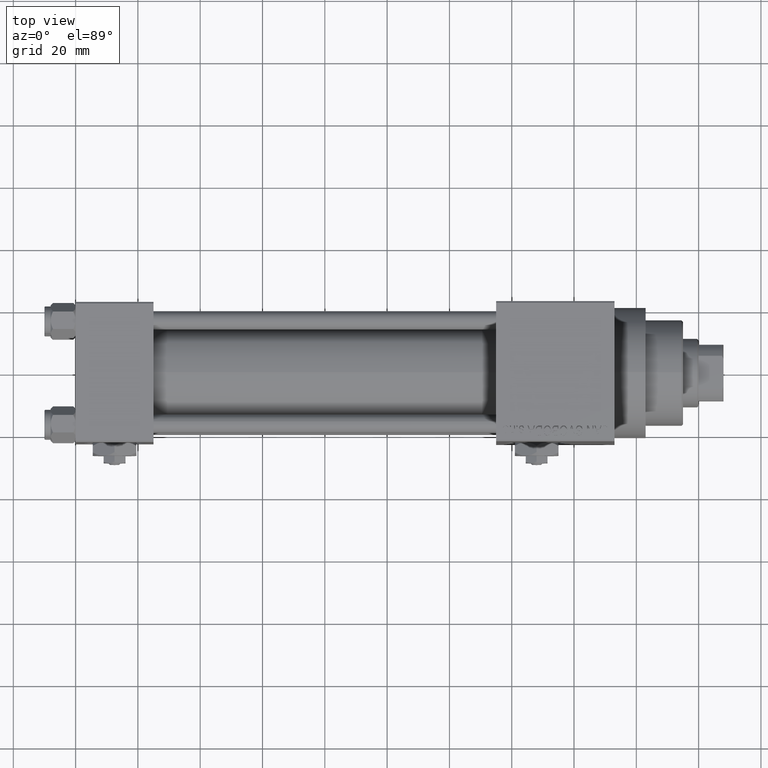
[diagram: clean part render]
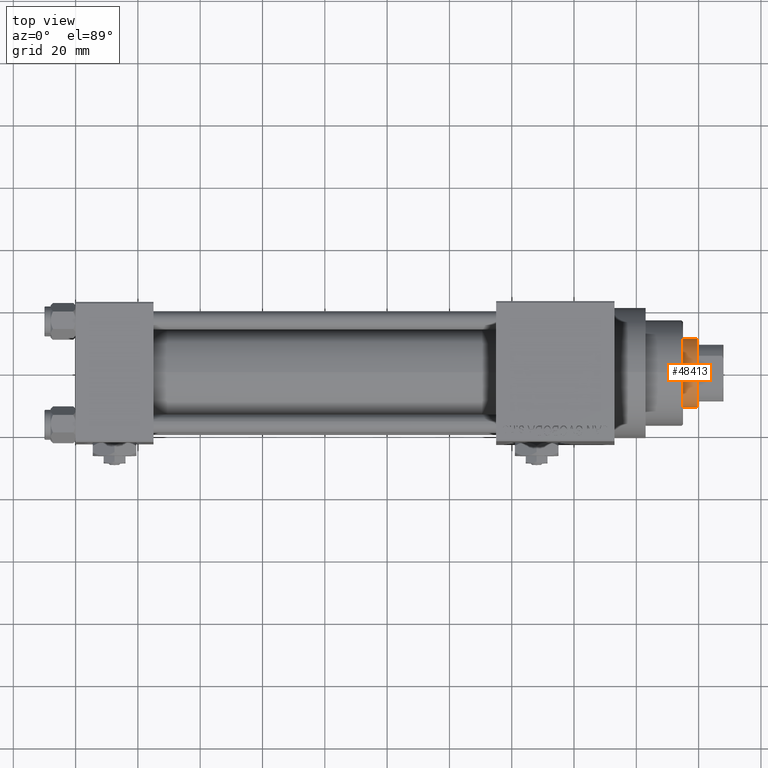
[diagram: same view with one face highlighted and labeled with its STEP entity id]
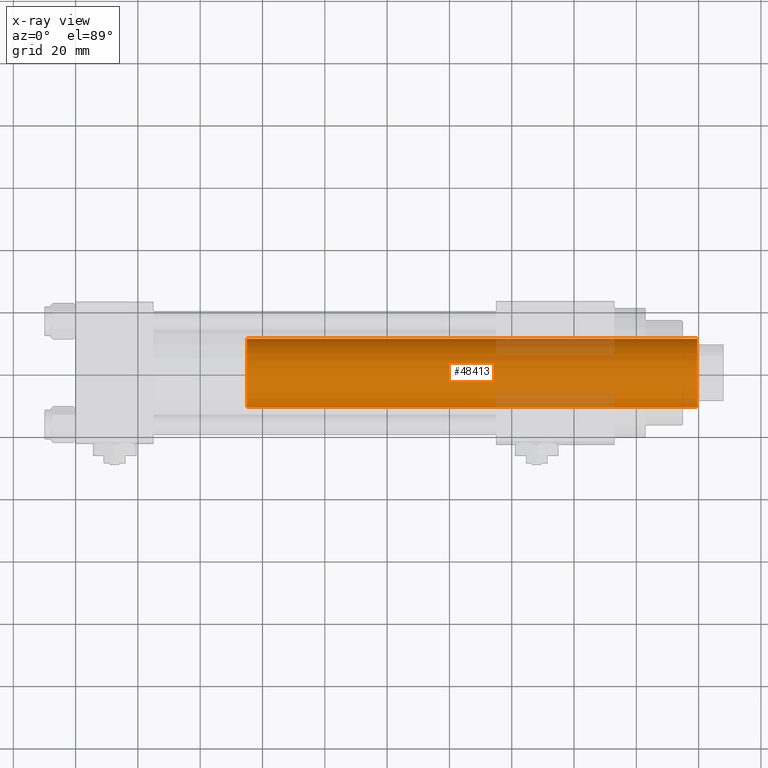
[diagram: x-ray of the same camera — body ghosted, the highlighted face saturated]
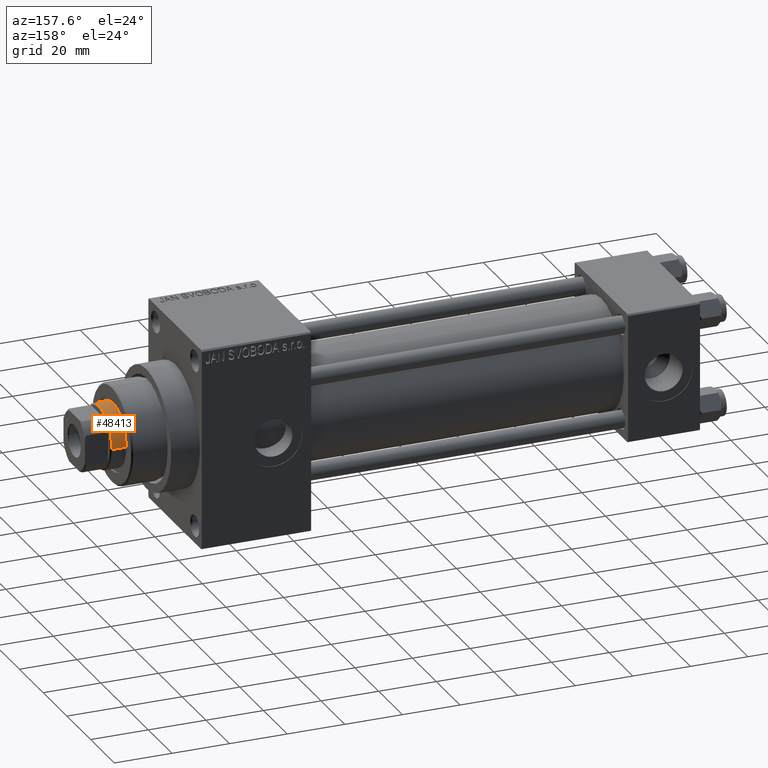
[diagram: same view with one face highlighted and labeled with its STEP entity id]
A machine part, top view. The second image highlights one B-rep face of the part: STEP entity #48413.
The next image is the same camera in x-ray: the body ghosted, the highlighted face saturated — about 12% of this face is hidden behind the body in this view.
A second angle (auxiliary view) of the same face is appended — the face is thin or edge-on in the first view.
In plain terms, the highlighted cylindrical surface (edge-blend (fillet) strip) has radius 11 mm, axis along (-1, 0, 0).
Its self-contained STEP definition (entity closure, byte-faithful):
#1512 = EDGE_CURVE ( 'NONE', #42108, #41970, #36530, .T. ) ;
#2519 = DIRECTION ( 'NONE',  ( -0.000000000000000000, -0.000000000000000000, -1.000000000000000000 ) ) ;
#2576 = DIRECTION ( 'NONE',  ( 0.000000000000000000, 0.000000000000000000, -1.000000000000000000 ) ) ;
#7174 = CARTESIAN_POINT ( 'NONE',  ( 11.00000000000000000, 1.347111479062088405E-15, 30.00000000000000000 ) ) ;
#7199 = DIRECTION ( 'NONE',  ( -0.000000000000000000, -0.000000000000000000, -1.000000000000000000 ) ) ;
#9925 = ORIENTED_EDGE ( 'NONE', *, *, #1512, .T. ) ;
#10954 = CARTESIAN_POINT ( 'NONE',  ( 0.000000000000000000, 0.000000000000000000, 30.00000000000000000 ) ) ;
#12216 = AXIS2_PLACEMENT_3D ( 'NONE', #10954, #26073, #25561 ) ;
#13062 = CIRCLE ( 'NONE', #36067, 11.00000000000000000 ) ;
#14287 = VERTEX_POINT ( 'NONE', #47795 ) ;
#14354 = VECTOR ( 'NONE', #2519, 1000.000000000000000 ) ;
#14636 = DIRECTION ( 'NONE',  ( -1.000000000000000000, 0.000000000000000000, 0.000000000000000000 ) ) ;
#18052 = ORIENTED_EDGE ( 'NONE', *, *, #20109, .F. ) ;
#18980 = CARTESIAN_POINT ( 'NONE',  ( -11.00000000000000000, 0.000000000000000000, 30.00000000000000000 ) ) ;
#20109 = EDGE_CURVE ( 'NONE', #14287, #20398, #21601, .T. ) ;
#20212 = CARTESIAN_POINT ( 'NONE',  ( -11.00000000000000000, 0.000000000000000000, 175.0000000000000000 ) ) ;
#20398 = VERTEX_POINT ( 'NONE', #7174 ) ;
#20935 = CARTESIAN_POINT ( 'NONE',  ( -11.00000000000000000, 0.000000000000000000, 174.5000000000000284 ) ) ;
#21123 = DIRECTION ( 'NONE',  ( -0.000000000000000000, -0.000000000000000000, -1.000000000000000000 ) ) ;
#21601 = LINE ( 'NONE', #40515, #28351 ) ;
#22315 = CYLINDRICAL_SURFACE ( 'NONE', #45869, 11.00000000000000000 ) ;
#23041 = CARTESIAN_POINT ( 'NONE',  ( 0.000000000000000000, 0.000000000000000000, 175.0000000000000000 ) ) ;
#25561 = DIRECTION ( 'NONE',  ( 1.000000000000000000, 0.000000000000000000, 0.000000000000000000 ) ) ;
#26073 = DIRECTION ( 'NONE',  ( 0.000000000000000000, 0.000000000000000000, 1.000000000000000000 ) ) ;
#26540 = FACE_OUTER_BOUND ( 'NONE', #27601, .T. ) ;
#27140 = EDGE_CURVE ( 'NONE', #41970, #20398, #39969, .T. ) ;
#27601 = EDGE_LOOP ( 'NONE', ( #18052, #48451, #9925, #41219 ) ) ;
#28351 = VECTOR ( 'NONE', #21123, 1000.000000000000000 ) ;
#28979 = EDGE_CURVE ( 'NONE', #14287, #42108, #13062, .T. ) ;
#36067 = AXIS2_PLACEMENT_3D ( 'NONE', #40820, #2576, #48537 ) ;
#36530 = LINE ( 'NONE', #20212, #14354 ) ;
#39969 = CIRCLE ( 'NONE', #12216, 11.00000000000000000 ) ;
#40515 = CARTESIAN_POINT ( 'NONE',  ( 11.00000000000000000, 1.347111479062088405E-15, 175.0000000000000000 ) ) ;
#40820 = CARTESIAN_POINT ( 'NONE',  ( 0.000000000000000000, 0.000000000000000000, 174.5000000000000284 ) ) ;
#41219 = ORIENTED_EDGE ( 'NONE', *, *, #27140, .T. ) ;
#41970 = VERTEX_POINT ( 'NONE', #18980 ) ;
#42108 = VERTEX_POINT ( 'NONE', #20935 ) ;
#45869 = AXIS2_PLACEMENT_3D ( 'NONE', #23041, #7199, #14636 ) ;
#47795 = CARTESIAN_POINT ( 'NONE',  ( 11.00000000000000000, 1.347111479062088405E-15, 174.5000000000000284 ) ) ;
#48413 = ADVANCED_FACE ( 'NONE', ( #26540 ), #22315, .T. ) ;
#48451 = ORIENTED_EDGE ( 'NONE', *, *, #28979, .T. ) ;
#48537 = DIRECTION ( 'NONE',  ( 1.000000000000000000, 0.000000000000000000, 0.000000000000000000 ) ) ;